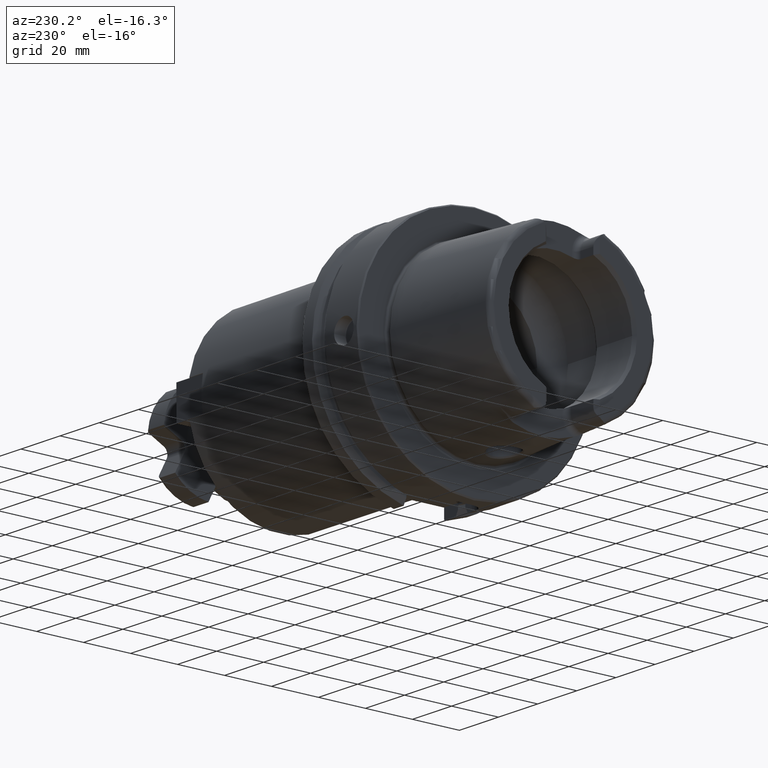
[diagram: clean part render]
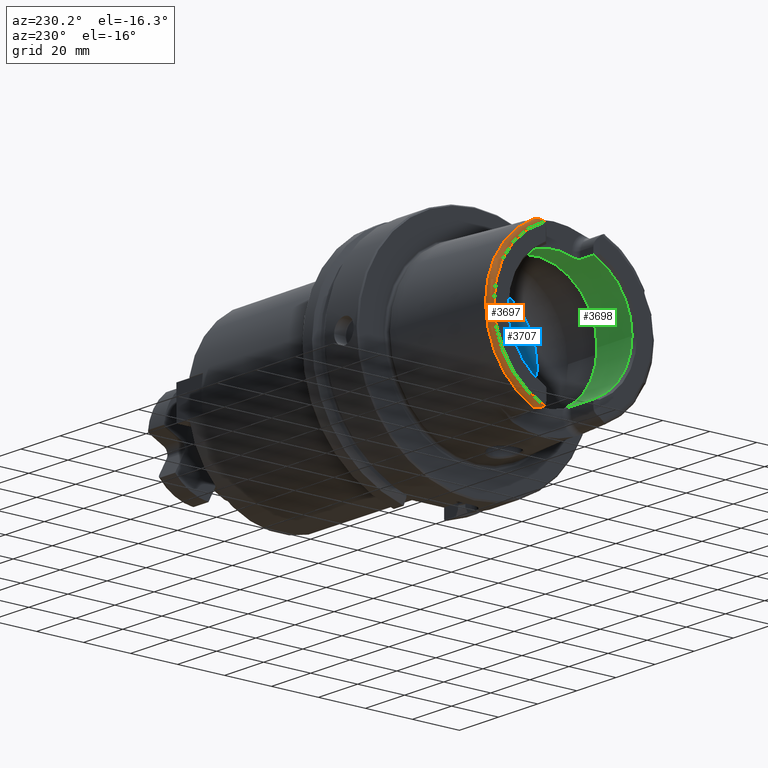
[diagram: same view with three faces highlighted in distinct colors, each labeled with its STEP entity id]
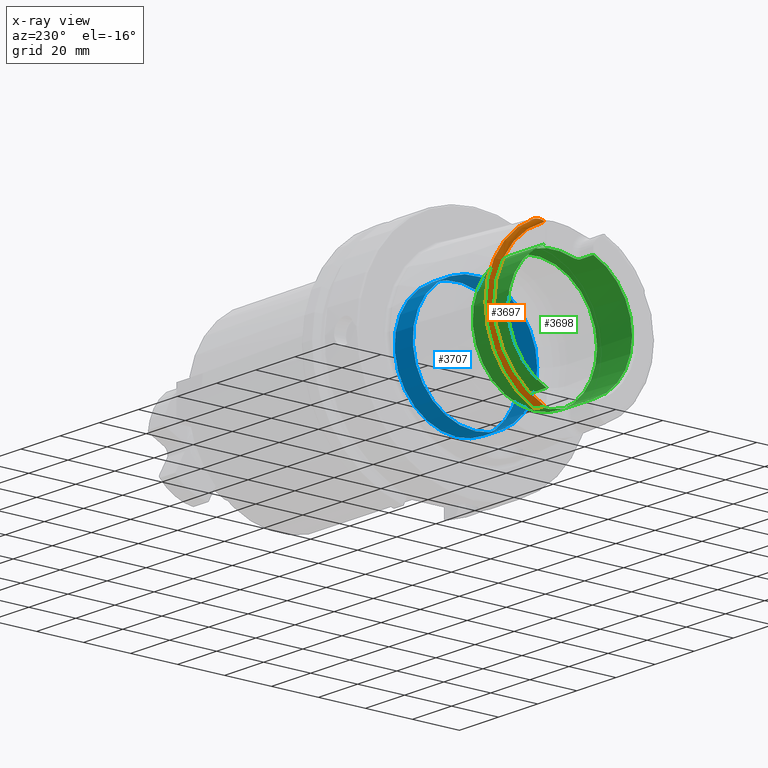
[diagram: x-ray of the same camera — body ghosted, the three highlighted faces saturated]
A machine part, auxiliary view with three faces highlighted in distinct colors.
The next image is the same camera in x-ray (body ghosted, the three faces saturated) — at least one of them is partly hidden behind the body in this view.
Their STEP definitions:

[orange] entity #3697 — the highlighted toroidal blend (fillet) surface has major radius 33.6002 mm and minor (blend) radius 2 mm.
#593=B_SPLINE_CURVE_WITH_KNOTS('',3,(#5720,#5721,#5722,#5723,#5724,#5725,
#5726,#5727,#5728,#5729,#5730,#5731),.UNSPECIFIED.,.F.,.F.,(4,2,2,2,2,4),
(-0.744485085130335,-0.701284148098614,-0.656581713087918,-0.531183195108729,
-0.406814905045398,-0.320767863003946),.UNSPECIFIED.);
#598=B_SPLINE_CURVE_WITH_KNOTS('',3,(#5839,#5840,#5841,#5842,#5843,#5844,
#5845,#5846,#5847,#5848,#5849,#5850),.UNSPECIFIED.,.F.,.F.,(4,2,2,2,2,4),
(-0.33049294128038,-0.267730672592795,-0.15978363726818,-0.0785649842435549,
-0.0319753598823885,-6.79221864813266E-5),.UNSPECIFIED.);
#680=TOROIDAL_SURFACE('',#4160,33.6001839277785,2.);
#951=FACE_OUTER_BOUND('',#1147,.T.);
#1147=EDGE_LOOP('',(#3200,#3201,#3202,#3203));
#1669=CIRCLE('',#4038,35.5976786130245);
#1730=CIRCLE('',#4161,33.6001839277785);
#1907=VERTEX_POINT('',#5717);
#1908=VERTEX_POINT('',#5719);
#1933=VERTEX_POINT('',#5829);
#1934=VERTEX_POINT('',#5838);
#2241=EDGE_CURVE('',#1908,#1907,#593,.T.);
#2273=EDGE_CURVE('',#1934,#1933,#598,.T.);
#2292=EDGE_CURVE('',#1908,#1933,#1669,.T.);
#2464=EDGE_CURVE('',#1907,#1934,#1730,.T.);
#3200=ORIENTED_EDGE('',*,*,#2273,.T.);
#3201=ORIENTED_EDGE('',*,*,#2292,.F.);
#3202=ORIENTED_EDGE('',*,*,#2241,.T.);
#3203=ORIENTED_EDGE('',*,*,#2464,.T.);
#3697=ADVANCED_FACE('',(#951),#680,.T.);
#4038=AXIS2_PLACEMENT_3D('',#6107,#4675,#4676);
#4160=AXIS2_PLACEMENT_3D('',#7038,#4978,#4979);
#4161=AXIS2_PLACEMENT_3D('',#7039,#4980,#4981);
#4675=DIRECTION('center_axis',(1.,0.,0.));
#4676=DIRECTION('ref_axis',(0.,0.,-1.));
#4978=DIRECTION('center_axis',(1.,0.,0.));
#4979=DIRECTION('ref_axis',(0.,0.,-1.));
#4980=DIRECTION('center_axis',(1.,0.,0.));
#4981=DIRECTION('ref_axis',(0.,0.,-1.));
#5717=CARTESIAN_POINT('',(-50.,12.0743049948301,-31.355757348091));
#5719=CARTESIAN_POINT('',(-48.1000748840304,15.0787152148571,-32.2463497175327));
#5720=CARTESIAN_POINT('Ctrl Pts',(-48.1000748840304,15.0787152148571,-32.2463497175327));
#5721=CARTESIAN_POINT('Ctrl Pts',(-48.2105289331959,15.0644723890649,-32.2469009162952));
#5722=CARTESIAN_POINT('Ctrl Pts',(-48.3152849211513,15.0274043790922,-32.2483365520296));
#5723=CARTESIAN_POINT('Ctrl Pts',(-48.5158350355592,14.9227249886344,-32.2501807122049));
#5724=CARTESIAN_POINT('Ctrl Pts',(-48.6114759122293,14.853948633775,-32.2504380099703));
#5725=CARTESIAN_POINT('Ctrl Pts',(-48.9444340259589,14.5699075364914,-32.2439932048825));
#5726=CARTESIAN_POINT('Ctrl Pts',(-49.1873237794489,14.2618237213855,-32.2229124522755));
#5727=CARTESIAN_POINT('Ctrl Pts',(-49.6096022065355,13.5557805634606,-32.0777680620402));
#5728=CARTESIAN_POINT('Ctrl Pts',(-49.7790094341757,13.1775605707035,-31.9575317726829));
#5729=CARTESIAN_POINT('Ctrl Pts',(-49.9573633441756,12.558596693048,-31.6661869684752));
#5730=CARTESIAN_POINT('Ctrl Pts',(-50.,12.3094122367882,-31.5218463066117));
#5731=CARTESIAN_POINT('Ctrl Pts',(-50.,12.0743049948301,-31.355757348091));
#5829=CARTESIAN_POINT('',(-48.1000748840304,15.0787152148571,32.2463497175327));
#5838=CARTESIAN_POINT('',(-50.,12.0743049948301,31.355757348091));
#5839=CARTESIAN_POINT('Ctrl Pts',(-50.,12.0743049948301,31.355757348091));
#5840=CARTESIAN_POINT('Ctrl Pts',(-50.,12.2864160042027,31.5056008677719));
#5841=CARTESIAN_POINT('Ctrl Pts',(-49.965181241452,12.5182840828266,31.6438016135975));
#5842=CARTESIAN_POINT('Ctrl Pts',(-49.780095292634,13.1934814711235,31.9701190766011));
#5843=CARTESIAN_POINT('Ctrl Pts',(-49.5793805506892,13.6220310736955,32.097613465566));
#5844=CARTESIAN_POINT('Ctrl Pts',(-49.170216000735,14.274989330902,32.2194840260055));
#5845=CARTESIAN_POINT('Ctrl Pts',(-48.9762638716764,14.5215824129494,32.2396097025416));
#5846=CARTESIAN_POINT('Ctrl Pts',(-48.6666306582889,14.8133702905837,32.2505591140316));
#5847=CARTESIAN_POINT('Ctrl Pts',(-48.5389792055844,14.9127554064334,32.2504492219699));
#5848=CARTESIAN_POINT('Ctrl Pts',(-48.3058528414878,15.0307034754738,32.2482068363322));
#5849=CARTESIAN_POINT('Ctrl Pts',(-48.2055479344945,15.0651146787529,32.2468760596209));
#5850=CARTESIAN_POINT('Ctrl Pts',(-48.1000748840303,15.0787152148571,32.2463497175327));
#6107=CARTESIAN_POINT('Origin',(-48.1000748840304,0.,0.));
#7038=CARTESIAN_POINT('Origin',(-48.,0.,0.));
#7039=CARTESIAN_POINT('Origin',(-50.,0.,0.));

[blue] entity #3707 — the highlighted cylindrical surface (bore or boss wall) has radius 26.5 mm, axis along (-1, 0, 0).
#827=CYLINDRICAL_SURFACE('',#4184,26.5);
#961=FACE_OUTER_BOUND('',#1160,.T.);
#1160=EDGE_LOOP('',(#3252,#3253,#3254,#3255,#3256,#3257));
#1357=LINE('',#7077,#1549);
#1549=VECTOR('',#5031,26.5);
#1677=CIRCLE('',#4050,26.5);
#1678=CIRCLE('',#4051,26.5);
#1742=CIRCLE('',#4182,26.5);
#1743=CIRCLE('',#4183,26.5);
#1963=VERTEX_POINT('',#6429);
#1964=VERTEX_POINT('',#6430);
#2062=VERTEX_POINT('',#7071);
#2063=VERTEX_POINT('',#7073);
#2315=EDGE_CURVE('',#1963,#1964,#1677,.T.);
#2316=EDGE_CURVE('',#1964,#1963,#1678,.T.);
#2479=EDGE_CURVE('',#2062,#2063,#1742,.T.);
#2480=EDGE_CURVE('',#2063,#2062,#1743,.T.);
#2481=EDGE_CURVE('',#2063,#1963,#1357,.T.);
#3252=ORIENTED_EDGE('',*,*,#2480,.F.);
#3253=ORIENTED_EDGE('',*,*,#2481,.T.);
#3254=ORIENTED_EDGE('',*,*,#2315,.T.);
#3255=ORIENTED_EDGE('',*,*,#2316,.T.);
#3256=ORIENTED_EDGE('',*,*,#2481,.F.);
#3257=ORIENTED_EDGE('',*,*,#2479,.F.);
#3707=ADVANCED_FACE('',(#961),#827,.F.);
#4050=AXIS2_PLACEMENT_3D('',#6431,#4703,#4704);
#4051=AXIS2_PLACEMENT_3D('',#6432,#4705,#4706);
#4182=AXIS2_PLACEMENT_3D('',#7074,#5025,#5026);
#4183=AXIS2_PLACEMENT_3D('',#7075,#5027,#5028);
#4184=AXIS2_PLACEMENT_3D('',#7076,#5029,#5030);
#4703=DIRECTION('center_axis',(-1.,0.,0.));
#4704=DIRECTION('ref_axis',(0.,0.,1.));
#4705=DIRECTION('center_axis',(-1.,0.,0.));
#4706=DIRECTION('ref_axis',(0.,0.,1.));
#5025=DIRECTION('center_axis',(-1.,0.,0.));
#5026=DIRECTION('ref_axis',(0.,0.,1.));
#5027=DIRECTION('center_axis',(-1.,0.,0.));
#5028=DIRECTION('ref_axis',(0.,0.,1.));
#5029=DIRECTION('center_axis',(-1.,0.,0.));
#5030=DIRECTION('ref_axis',(0.,1.,0.));
#5031=DIRECTION('',(-1.,0.,0.));
#6429=CARTESIAN_POINT('',(0.,-26.5,3.24531401774049E-15));
#6430=CARTESIAN_POINT('',(0.,-3.24531401774049E-15,-26.5));
#6431=CARTESIAN_POINT('Origin',(0.,0.,0.));
#6432=CARTESIAN_POINT('Origin',(0.,0.,0.));
#7071=CARTESIAN_POINT('',(9.3,-3.24531401774049E-15,-26.5));
#7073=CARTESIAN_POINT('',(9.3,-26.5,3.24531401774049E-15));
#7074=CARTESIAN_POINT('Origin',(9.3,0.,0.));
#7075=CARTESIAN_POINT('Origin',(9.3,0.,0.));
#7076=CARTESIAN_POINT('Origin',(4.65,0.,0.));
#7077=CARTESIAN_POINT('',(4.65,-26.5,3.24531401774049E-15));

[green] entity #3698 — the highlighted cylindrical surface (bore or boss wall) has radius 26.5 mm, axis along (-1, 0, 0).
#642=B_SPLINE_CURVE_WITH_KNOTS('',3,(#6931,#6932,#6933,#6934,#6935,#6936,
#6937,#6938,#6939,#6940),.UNSPECIFIED.,.F.,.F.,(4,2,2,2,4),(0.307245873696209,
0.387318131676521,0.467390389656833,0.542677307505841,0.617964225354849),
 .UNSPECIFIED.);
#643=B_SPLINE_CURVE_WITH_KNOTS('',3,(#6949,#6950,#6951,#6952,#6953,#6954,
#6955,#6956,#6957,#6958),.UNSPECIFIED.,.F.,.F.,(4,2,2,2,4),(0.61796422535485,
0.694491364966707,0.771018504578565,0.849854597041439,0.928690689504313),
 .UNSPECIFIED.);
#644=B_SPLINE_CURVE_WITH_KNOTS('',3,(#6971,#6972,#6973,#6974,#6975,#6976,
#6977,#6978,#6979,#6980),.UNSPECIFIED.,.F.,.F.,(4,2,2,2,4),(0.617964225354849,
0.693251143203857,0.768538061052865,0.848610319033177,0.928682577013489),
 .UNSPECIFIED.);
#645=B_SPLINE_CURVE_WITH_KNOTS('',3,(#7000,#7001,#7002,#7003,#7004,#7005,
#7006,#7007,#7008,#7009),.UNSPECIFIED.,.F.,.F.,(4,2,2,2,4),(0.307245873696209,
0.387318131676521,0.467390389656833,0.542677307505841,0.617964225354849),
 .UNSPECIFIED.);
#824=CYLINDRICAL_SURFACE('',#4162,26.5);
#952=FACE_OUTER_BOUND('',#1148,.T.);
#1148=EDGE_LOOP('',(#3204,#3205,#3206,#3207,#3208,#3209,#3210,#3211,#3212,
#3213,#3214,#3215,#3216,#3217,#3218,#3219,#3220));
#1279=LINE('',#5715,#1471);
#1287=LINE('',#5790,#1479);
#1291=LINE('',#5854,#1483);
#1350=LINE('',#6996,#1542);
#1354=LINE('',#7044,#1546);
#1471=VECTOR('',#4595,10.);
#1479=VECTOR('',#4641,10.);
#1483=VECTOR('',#4663,10.);
#1542=VECTOR('',#4942,10.);
#1546=VECTOR('',#4986,26.5);
#1658=CIRCLE('',#4016,26.5);
#1659=CIRCLE('',#4017,26.5);
#1722=CIRCLE('',#4141,26.5);
#1727=CIRCLE('',#4153,26.5);
#1728=CIRCLE('',#4156,26.5);
#1731=CIRCLE('',#4163,26.5);
#1732=CIRCLE('',#4164,26.5);
#1903=VERTEX_POINT('',#5705);
#1906=VERTEX_POINT('',#5713);
#1915=VERTEX_POINT('',#5762);
#1917=VERTEX_POINT('',#5768);
#1918=VERTEX_POINT('',#5770);
#1924=VERTEX_POINT('',#5788);
#1930=VERTEX_POINT('',#5821);
#1935=VERTEX_POINT('',#5853);
#2042=VERTEX_POINT('',#6929);
#2044=VERTEX_POINT('',#6948);
#2048=VERTEX_POINT('',#6969);
#2049=VERTEX_POINT('',#6970);
#2051=VERTEX_POINT('',#6990);
#2053=VERTEX_POINT('',#7041);
#2054=VERTEX_POINT('',#7042);
#2239=EDGE_CURVE('',#1903,#1906,#1279,.T.);
#2252=EDGE_CURVE('',#1917,#1918,#1658,.T.);
#2253=EDGE_CURVE('',#1918,#1915,#1659,.T.);
#2262=EDGE_CURVE('',#1917,#1924,#1287,.T.);
#2275=EDGE_CURVE('',#1935,#1930,#1291,.T.);
#2433=EDGE_CURVE('',#2042,#1924,#642,.T.);
#2437=EDGE_CURVE('',#1935,#2044,#643,.T.);
#2443=EDGE_CURVE('',#2048,#2049,#644,.T.);
#2449=EDGE_CURVE('',#2051,#2049,#1722,.T.);
#2452=EDGE_CURVE('',#2048,#1915,#1350,.T.);
#2455=EDGE_CURVE('',#2051,#1906,#645,.T.);
#2459=EDGE_CURVE('',#2042,#2044,#1727,.T.);
#2461=EDGE_CURVE('',#1903,#1930,#1728,.T.);
#2465=EDGE_CURVE('',#2053,#2054,#1731,.T.);
#2466=EDGE_CURVE('',#2053,#1918,#1354,.T.);
#2467=EDGE_CURVE('',#2054,#2053,#1732,.T.);
#3204=ORIENTED_EDGE('',*,*,#2465,.F.);
#3205=ORIENTED_EDGE('',*,*,#2466,.T.);
#3206=ORIENTED_EDGE('',*,*,#2252,.F.);
#3207=ORIENTED_EDGE('',*,*,#2262,.T.);
#3208=ORIENTED_EDGE('',*,*,#2433,.F.);
#3209=ORIENTED_EDGE('',*,*,#2459,.T.);
#3210=ORIENTED_EDGE('',*,*,#2437,.F.);
#3211=ORIENTED_EDGE('',*,*,#2275,.T.);
#3212=ORIENTED_EDGE('',*,*,#2461,.F.);
#3213=ORIENTED_EDGE('',*,*,#2239,.T.);
#3214=ORIENTED_EDGE('',*,*,#2455,.F.);
#3215=ORIENTED_EDGE('',*,*,#2449,.T.);
#3216=ORIENTED_EDGE('',*,*,#2443,.F.);
#3217=ORIENTED_EDGE('',*,*,#2452,.T.);
#3218=ORIENTED_EDGE('',*,*,#2253,.F.);
#3219=ORIENTED_EDGE('',*,*,#2466,.F.);
#3220=ORIENTED_EDGE('',*,*,#2467,.F.);
#3698=ADVANCED_FACE('',(#952),#824,.F.);
#4016=AXIS2_PLACEMENT_3D('',#5771,#4619,#4620);
#4017=AXIS2_PLACEMENT_3D('',#5772,#4621,#4622);
#4141=AXIS2_PLACEMENT_3D('',#6991,#4935,#4936);
#4153=AXIS2_PLACEMENT_3D('',#7018,#4963,#4964);
#4156=AXIS2_PLACEMENT_3D('',#7033,#4969,#4970);
#4162=AXIS2_PLACEMENT_3D('',#7040,#4982,#4983);
#4163=AXIS2_PLACEMENT_3D('',#7043,#4984,#4985);
#4164=AXIS2_PLACEMENT_3D('',#7045,#4987,#4988);
#4595=DIRECTION('',(1.,0.,0.));
#4619=DIRECTION('center_axis',(1.,0.,0.));
#4620=DIRECTION('ref_axis',(0.,-1.,0.));
#4621=DIRECTION('center_axis',(1.,0.,0.));
#4622=DIRECTION('ref_axis',(0.,-1.,0.));
#4641=DIRECTION('',(1.,0.,0.));
#4663=DIRECTION('',(-1.,0.,0.));
#4935=DIRECTION('center_axis',(-1.,0.,0.));
#4936=DIRECTION('ref_axis',(0.,1.,0.));
#4942=DIRECTION('',(-1.,0.,0.));
#4963=DIRECTION('center_axis',(-1.,0.,0.));
#4964=DIRECTION('ref_axis',(0.,1.,0.));
#4969=DIRECTION('center_axis',(1.,0.,0.));
#4970=DIRECTION('ref_axis',(0.,-1.,0.));
#4982=DIRECTION('center_axis',(-1.,0.,0.));
#4983=DIRECTION('ref_axis',(0.,1.,0.));
#4984=DIRECTION('center_axis',(-1.,0.,0.));
#4985=DIRECTION('ref_axis',(0.,0.,1.));
#4986=DIRECTION('',(-1.,0.,0.));
#4987=DIRECTION('center_axis',(-1.,0.,0.));
#4988=DIRECTION('ref_axis',(0.,0.,1.));
#5705=CARTESIAN_POINT('',(-48.5,10.01,-24.5367051577835));
#5713=CARTESIAN_POINT('',(-37.,10.01,-24.5367051577835));
#5715=CARTESIAN_POINT('',(-40.2903629710818,10.01,-24.5367051577835));
#5762=CARTESIAN_POINT('',(-48.5,-10.01,-24.5367051577835));
#5768=CARTESIAN_POINT('',(-48.5,-10.01,24.5367051577835));
#5770=CARTESIAN_POINT('',(-48.5,-26.5,3.24531401774049E-15));
#5771=CARTESIAN_POINT('Origin',(-48.5,0.,0.));
#5772=CARTESIAN_POINT('Origin',(-48.5,0.,0.));
#5788=CARTESIAN_POINT('',(-42.,-10.01,24.5367051577835));
#5790=CARTESIAN_POINT('',(-40.2903629710818,-10.01,24.5367051577835));
#5821=CARTESIAN_POINT('',(-48.5,10.01,24.5367051577835));
#5853=CARTESIAN_POINT('',(-42.,10.01,24.5367051577835));
#5854=CARTESIAN_POINT('',(-40.2903629710818,10.01,24.5367051577835));
#6929=CARTESIAN_POINT('',(-40.,-8.01,25.2604414054862));
#6931=CARTESIAN_POINT('Ctrl Pts',(-40.,-8.01,25.2604414054862));
#6932=CARTESIAN_POINT('Ctrl Pts',(-40.,-8.26442271458071,25.1797648285777));
#6933=CARTESIAN_POINT('Ctrl Pts',(-40.0513332778729,-8.53503831367686,25.0892968127514));
#6934=CARTESIAN_POINT('Ctrl Pts',(-40.2604388709541,-9.03317850506395,24.9142806373643));
#6935=CARTESIAN_POINT('Ctrl Pts',(-40.4182028025644,-9.2607746884821,24.8299262887475));
#6936=CARTESIAN_POINT('Ctrl Pts',(-40.7762398849713,-9.61038047170956,24.6966285655713));
#6937=CARTESIAN_POINT('Ctrl Pts',(-40.996584045901,-9.75993653512726,24.6374761492843));
#6938=CARTESIAN_POINT('Ctrl Pts',(-41.4829332858843,-9.95981108540838,24.557356442995));
#6939=CARTESIAN_POINT('Ctrl Pts',(-41.74904360717,-10.01,24.5367051577835));
#6940=CARTESIAN_POINT('Ctrl Pts',(-42.,-10.01,24.5367051577835));
#6948=CARTESIAN_POINT('',(-40.,8.01,25.2604414054862));
#6949=CARTESIAN_POINT('Ctrl Pts',(-42.,10.01,24.5367051577835));
#6950=CARTESIAN_POINT('Ctrl Pts',(-41.7449095346271,10.01,24.5367051577835));
#6951=CARTESIAN_POINT('Ctrl Pts',(-41.4747619014646,9.95816285425487,24.5580391842641));
#6952=CARTESIAN_POINT('Ctrl Pts',(-40.9823460284033,9.75229566196282,24.640515927451));
#6953=CARTESIAN_POINT('Ctrl Pts',(-40.7599680829949,9.59839520774108,24.7013267120605));
#6954=CARTESIAN_POINT('Ctrl Pts',(-40.4063494382929,9.24477656303909,24.8358806096526));
#6955=CARTESIAN_POINT('Ctrl Pts',(-40.2529543645221,9.01930384320105,24.9192727261742));
#6956=CARTESIAN_POINT('Ctrl Pts',(-40.049776768453,8.52719637786957,25.0919293188873));
#6957=CARTESIAN_POINT('Ctrl Pts',(-40.,8.26049490494288,25.1810103236462));
#6958=CARTESIAN_POINT('Ctrl Pts',(-40.,8.01,25.2604414054862));
#6969=CARTESIAN_POINT('',(-37.,-10.01,-24.5367051577835));
#6970=CARTESIAN_POINT('',(-35.,-8.01,-25.2604414054862));
#6971=CARTESIAN_POINT('Ctrl Pts',(-37.,-10.01,-24.5367051577835));
#6972=CARTESIAN_POINT('Ctrl Pts',(-36.74904360717,-10.01,-24.5367051577835));
#6973=CARTESIAN_POINT('Ctrl Pts',(-36.4829332858843,-9.95981108540838,-24.557356442995));
#6974=CARTESIAN_POINT('Ctrl Pts',(-35.9965840459011,-9.75993653512726,-24.6374761492843));
#6975=CARTESIAN_POINT('Ctrl Pts',(-35.7762398849713,-9.61038047170956,-24.6966285655713));
#6976=CARTESIAN_POINT('Ctrl Pts',(-35.4182028025644,-9.2607746884821,-24.8299262887475));
#6977=CARTESIAN_POINT('Ctrl Pts',(-35.2604388709541,-9.03317850506395,-24.9142806373643));
#6978=CARTESIAN_POINT('Ctrl Pts',(-35.0513332778729,-8.53503831367686,-25.0892968127514));
#6979=CARTESIAN_POINT('Ctrl Pts',(-35.,-8.26442271458071,-25.1797648285777));
#6980=CARTESIAN_POINT('Ctrl Pts',(-35.,-8.01,-25.2604414054862));
#6990=CARTESIAN_POINT('',(-35.,8.01,-25.2604414054862));
#6991=CARTESIAN_POINT('Origin',(-35.,0.,0.));
#6996=CARTESIAN_POINT('',(-40.2903629710818,-10.01,-24.5367051577835));
#7000=CARTESIAN_POINT('Ctrl Pts',(-35.,8.01,-25.2604414054862));
#7001=CARTESIAN_POINT('Ctrl Pts',(-35.,8.26442271458071,-25.1797648285777));
#7002=CARTESIAN_POINT('Ctrl Pts',(-35.0513332778729,8.53503831367686,-25.0892968127514));
#7003=CARTESIAN_POINT('Ctrl Pts',(-35.2604388709541,9.03317850506395,-24.9142806373643));
#7004=CARTESIAN_POINT('Ctrl Pts',(-35.4182028025644,9.2607746884821,-24.8299262887475));
#7005=CARTESIAN_POINT('Ctrl Pts',(-35.7762398849713,9.61038047170956,-24.6966285655713));
#7006=CARTESIAN_POINT('Ctrl Pts',(-35.9965840459011,9.75993653512726,-24.6374761492843));
#7007=CARTESIAN_POINT('Ctrl Pts',(-36.4829332858843,9.95981108540838,-24.557356442995));
#7008=CARTESIAN_POINT('Ctrl Pts',(-36.74904360717,10.01,-24.5367051577835));
#7009=CARTESIAN_POINT('Ctrl Pts',(-37.,10.01,-24.5367051577835));
#7018=CARTESIAN_POINT('Origin',(-40.,0.,0.));
#7033=CARTESIAN_POINT('Origin',(-48.5,0.,0.));
#7040=CARTESIAN_POINT('Origin',(-40.2903629710818,0.,0.));
#7041=CARTESIAN_POINT('',(-30.5807259421637,-26.5,3.24531401774049E-15));
#7042=CARTESIAN_POINT('',(-30.5807259421637,-3.24531401774049E-15,-26.5));
#7043=CARTESIAN_POINT('Origin',(-30.5807259421637,0.,0.));
#7044=CARTESIAN_POINT('',(-40.2903629710818,-26.5,3.24531401774049E-15));
#7045=CARTESIAN_POINT('Origin',(-30.5807259421637,0.,0.));